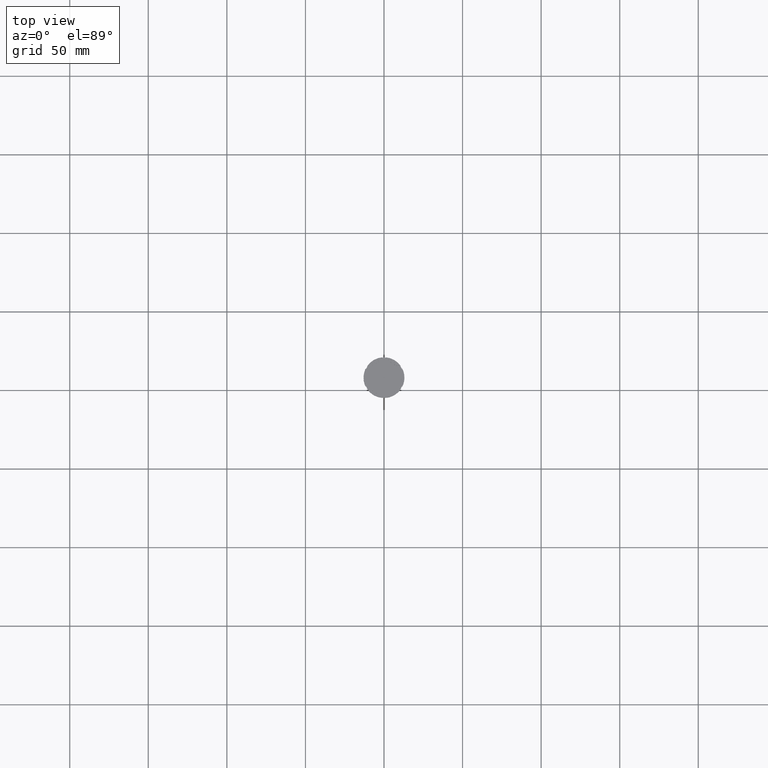
[diagram: clean part render]
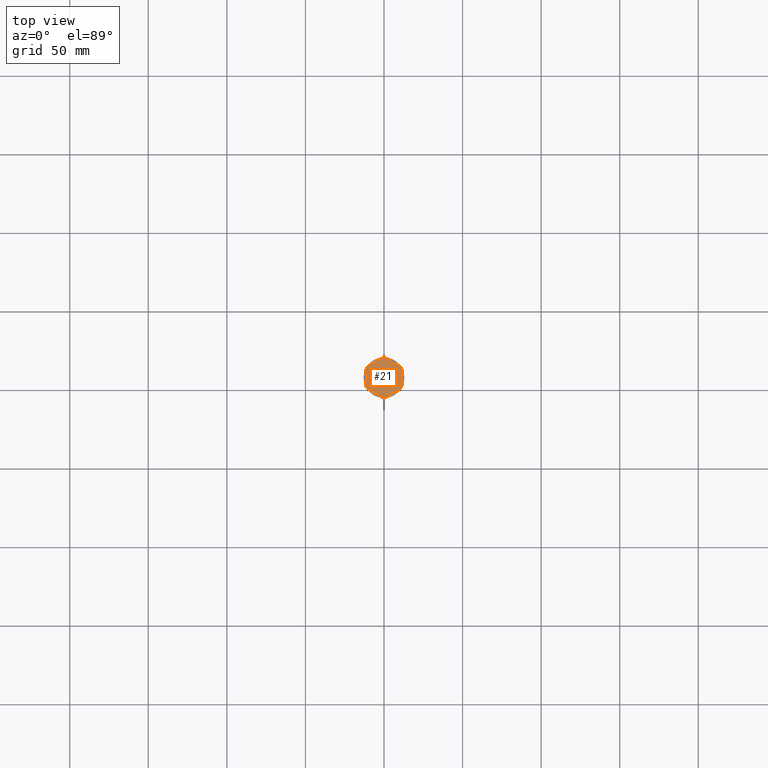
[diagram: same view with one face highlighted and labeled with its STEP entity id]
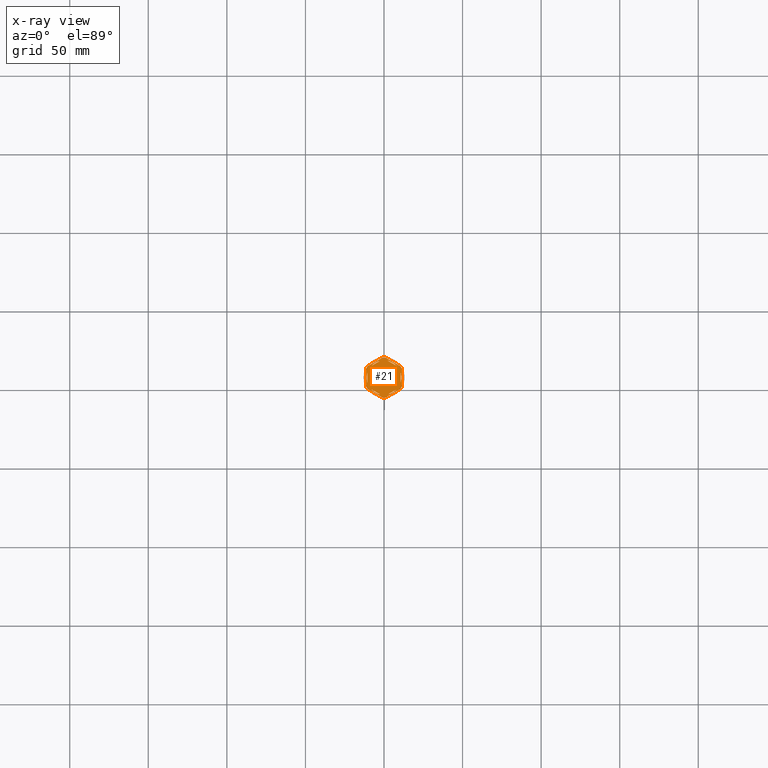
[diagram: x-ray of the same camera — body ghosted, the highlighted face saturated]
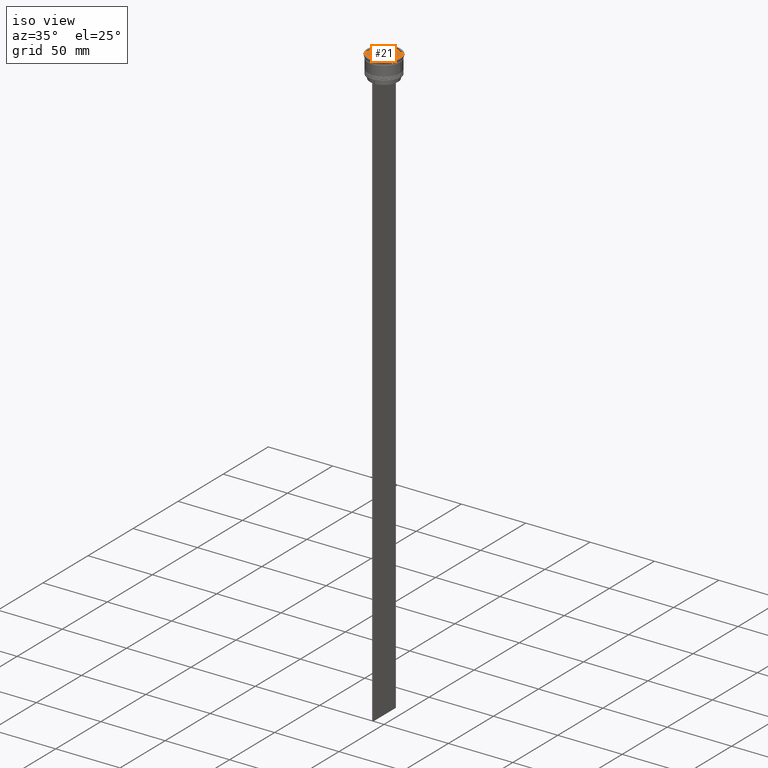
[diagram: same view with one face highlighted and labeled with its STEP entity id]
A machine part, top view. The second image highlights one B-rep face of the part: STEP entity #21.
The next image is the same camera in x-ray: the body ghosted, the highlighted face saturated — about 0% of this face is hidden behind the body in this view.
A second angle (iso view) of the same face is appended — the face is thin or edge-on in the first view.
In plain terms, the highlighted planar face has unit normal (0, 0, 1).
Its self-contained STEP definition (entity closure, byte-faithful):
#11 = VECTOR ( 'NONE', #1618, 1000.000000000000000 ) ;
#12 = VERTEX_POINT ( 'NONE', #18 ) ;
#14 = DIRECTION ( 'NONE',  ( 1.000000000000000000, 0.000000000000000000, 0.000000000000000000 ) ) ;
#18 = CARTESIAN_POINT ( 'NONE',  ( 10.49999999999999467, -3.278719262151014835, -1.000000000000000888 ) ) ;
#21 = ADVANCED_FACE ( 'NONE', ( #2451, #913, #2281, #1222, #2122, #537, #1427 ), #1905, .T. ) ;
#28 = VERTEX_POINT ( 'NONE', #333 ) ;
#47 = LINE ( 'NONE', #2718, #157 ) ;
#50 = ORIENTED_EDGE ( 'NONE', *, *, #2399, .F. ) ;
#60 = CARTESIAN_POINT ( 'NONE',  ( 0.000000000000000000, 0.000000000000000000, -1.000000000000000000 ) ) ;
#64 = VERTEX_POINT ( 'NONE', #307 ) ;
#67 = CARTESIAN_POINT ( 'NONE',  ( -2.410545827099876082, -10.73262637081210435, -1.000000000000000888 ) ) ;
#68 = ORIENTED_EDGE ( 'NONE', *, *, #2045, .F. ) ;
#93 = CIRCLE ( 'NONE', #426, 11.00000000000000000 ) ;
#101 = DIRECTION ( 'NONE',  ( 1.000000000000000000, 0.000000000000000000, -0.000000000000000000 ) ) ;
#136 = DIRECTION ( 'NONE',  ( 1.000000000000000000, 0.000000000000000000, 0.000000000000000000 ) ) ;
#153 = VECTOR ( 'NONE', #985, 1000.000000000000000 ) ;
#157 = VECTOR ( 'NONE', #1422, 1000.000000000000114 ) ;
#175 = CARTESIAN_POINT ( 'NONE',  ( -10.49999999999999822, -3.278719262151000624, -1.000000000000000888 ) ) ;
#178 = EDGE_LOOP ( 'NONE', ( #366, #1282, #2001 ) ) ;
#209 = CIRCLE ( 'NONE', #1505, 12.69999999999999929 ) ;
#212 = EDGE_LOOP ( 'NONE', ( #68, #2517 ) ) ;
#239 = ORIENTED_EDGE ( 'NONE', *, *, #547, .T. ) ;
#249 = AXIS2_PLACEMENT_3D ( 'NONE', #1590, #2040, #1800 ) ;
#257 = VERTEX_POINT ( 'NONE', #866 ) ;
#263 = VERTEX_POINT ( 'NONE', #2815 ) ;
#288 = DIRECTION ( 'NONE',  ( 0.8660254037844385966, 0.4999999999999999445, 0.000000000000000000 ) ) ;
#307 = CARTESIAN_POINT ( 'NONE',  ( -10.41690475583121689, 7.264853426459546348, -1.000000000000000000 ) ) ;
#318 = VERTEX_POINT ( 'NONE', #890 ) ;
#323 = CARTESIAN_POINT ( 'NONE',  ( 0.000000000000000000, 0.000000000000000000, -1.000000000000000000 ) ) ;
#325 = CARTESIAN_POINT ( 'NONE',  ( 0.000000000000000000, 0.000000000000000000, -1.000000000000000000 ) ) ;
#331 = EDGE_CURVE ( 'NONE', #28, #2750, #2264, .T. ) ;
#333 = CARTESIAN_POINT ( 'NONE',  ( -10.41690475583121334, -7.264853426459548125, -1.000000000000000000 ) ) ;
#348 = LINE ( 'NONE', #2351, #1088 ) ;
#366 = ORIENTED_EDGE ( 'NONE', *, *, #2581, .F. ) ;
#385 = CARTESIAN_POINT ( 'NONE',  ( -2.602085213965210642E-15, -12.12435565298214080, -1.000000000000000888 ) ) ;
#410 = EDGE_CURVE ( 'NONE', #552, #445, #569, .T. ) ;
#426 = AXIS2_PLACEMENT_3D ( 'NONE', #785, #1671, #758 ) ;
#436 = VECTOR ( 'NONE', #2652, 1000.000000000000227 ) ;
#445 = VERTEX_POINT ( 'NONE', #2487 ) ;
#453 = EDGE_CURVE ( 'NONE', #2457, #12, #2338, .T. ) ;
#486 = LINE ( 'NONE', #1614, #2006 ) ;
#488 = VERTEX_POINT ( 'NONE', #1643 ) ;
#489 = LINE ( 'NONE', #2017, #11 ) ;
#537 = FACE_BOUND ( 'NONE', #1314, .T. ) ;
#547 = EDGE_CURVE ( 'NONE', #598, #445, #1392, .T. ) ;
#552 = VERTEX_POINT ( 'NONE', #767 ) ;
#569 = CIRCLE ( 'NONE', #2755, 12.69999999999999929 ) ;
#571 = ORIENTED_EDGE ( 'NONE', *, *, #331, .T. ) ;
#588 = VERTEX_POINT ( 'NONE', #1730 ) ;
#598 = VERTEX_POINT ( 'NONE', #1715 ) ;
#601 = EDGE_CURVE ( 'NONE', #1632, #950, #1501, .T. ) ;
#617 = ORIENTED_EDGE ( 'NONE', *, *, #2255, .F. ) ;
#619 = AXIS2_PLACEMENT_3D ( 'NONE', #2637, #1290, #1304 ) ;
#648 = DIRECTION ( 'NONE',  ( 0.8660254037844385966, 0.5000000000000001110, -0.000000000000000000 ) ) ;
#653 = ORIENTED_EDGE ( 'NONE', *, *, #2230, .F. ) ;
#673 = AXIS2_PLACEMENT_3D ( 'NONE', #2061, #1432, #1377 ) ;
#689 = VERTEX_POINT ( 'NONE', #861 ) ;
#701 = CARTESIAN_POINT ( 'NONE',  ( 10.49999999999999467, 3.278719262151012170, -1.000000000000000888 ) ) ;
#707 = AXIS2_PLACEMENT_3D ( 'NONE', #2215, #1988, #2395 ) ;
#729 = EDGE_LOOP ( 'NONE', ( #2020, #1564, #1249, #50, #1568, #1588, #2256, #1672, #571, #1943, #239, #797 ) ) ;
#732 = DIRECTION ( 'NONE',  ( 1.000000000000000000, 0.000000000000000000, 0.000000000000000000 ) ) ;
#754 = AXIS2_PLACEMENT_3D ( 'NONE', #325, #2774, #2316 ) ;
#758 = DIRECTION ( 'NONE',  ( 1.000000000000000000, 0.000000000000000000, 0.000000000000000000 ) ) ;
#759 = CIRCLE ( 'NONE', #1225, 11.00000000000000000 ) ;
#767 = CARTESIAN_POINT ( 'NONE',  ( 11.49999999999999822, -5.388877434122996135, -1.000000000000000000 ) ) ;
#785 = CARTESIAN_POINT ( 'NONE',  ( 0.000000000000000000, 0.000000000000000000, -1.000000000000000000 ) ) ;
#797 = ORIENTED_EDGE ( 'NONE', *, *, #410, .F. ) ;
#850 = CIRCLE ( 'NONE', #2473, 12.69999999999999929 ) ;
#861 = CARTESIAN_POINT ( 'NONE',  ( -11.00000000000000000, 0.000000000000000000, -1.000000000000000000 ) ) ;
#866 = CARTESIAN_POINT ( 'NONE',  ( 1.083095244168781557, 12.65373086058254160, -1.000000000000000000 ) ) ;
#876 = CARTESIAN_POINT ( 'NONE',  ( 11.49999999999999822, 5.388877434122992582, -1.000000000000000000 ) ) ;
#890 = CARTESIAN_POINT ( 'NONE',  ( -11.50000000000000000, -5.388877434122992582, -1.000000000000000000 ) ) ;
#909 = EDGE_CURVE ( 'NONE', #598, #2750, #209, .T. ) ;
#913 = FACE_BOUND ( 'NONE', #2651, .T. ) ;
#917 = CARTESIAN_POINT ( 'NONE',  ( -1.083095244168779780, -12.65373086058253982, -1.000000000000000000 ) ) ;
#938 = EDGE_CURVE ( 'NONE', #2644, #1457, #2288, .T. ) ;
#950 = VERTEX_POINT ( 'NONE', #1870 ) ;
#970 = CARTESIAN_POINT ( 'NONE',  ( 10.49999999999999289, -6.062177826491073063, -1.000000000000000888 ) ) ;
#981 = CARTESIAN_POINT ( 'NONE',  ( 0.000000000000000000, 0.000000000000000000, -1.000000000000000000 ) ) ;
#985 = DIRECTION ( 'NONE',  ( -1.430775808321104180E-16, -1.000000000000000000, 0.000000000000000000 ) ) ;
#989 = CIRCLE ( 'NONE', #754, 12.69999999999999929 ) ;
#995 = EDGE_CURVE ( 'NONE', #2640, #64, #989, .T. ) ;
#1028 = DIRECTION ( 'NONE',  ( -0.8660254037844384856, 0.5000000000000002220, 0.000000000000000000 ) ) ;
#1034 = VECTOR ( 'NONE', #288, 1000.000000000000114 ) ;
#1040 = EDGE_LOOP ( 'NONE', ( #2221, #2616 ) ) ;
#1085 = VECTOR ( 'NONE', #648, 1000.000000000000000 ) ;
#1088 = VECTOR ( 'NONE', #1028, 1000.000000000000000 ) ;
#1112 = DIRECTION ( 'NONE',  ( 0.8660254037844387076, -0.4999999999999999445, 0.000000000000000000 ) ) ;
#1154 = DIRECTION ( 'NONE',  ( -0.000000000000000000, -0.000000000000000000, -1.000000000000000000 ) ) ;
#1157 = DIRECTION ( 'NONE',  ( -0.000000000000000000, -0.000000000000000000, -1.000000000000000000 ) ) ;
#1171 = DIRECTION ( 'NONE',  ( 1.000000000000000000, 0.000000000000000000, 0.000000000000000000 ) ) ;
#1222 = FACE_BOUND ( 'NONE', #212, .T. ) ;
#1225 = AXIS2_PLACEMENT_3D ( 'NONE', #60, #1840, #732 ) ;
#1249 = ORIENTED_EDGE ( 'NONE', *, *, #2266, .T. ) ;
#1272 = DIRECTION ( 'NONE',  ( -0.8660254037844387076, -0.4999999999999999445, 0.000000000000000000 ) ) ;
#1278 = EDGE_CURVE ( 'NONE', #263, #2424, #759, .T. ) ;
#1282 = ORIENTED_EDGE ( 'NONE', *, *, #1490, .F. ) ;
#1290 = DIRECTION ( 'NONE',  ( 0.000000000000000000, 0.000000000000000000, 1.000000000000000000 ) ) ;
#1301 = DIRECTION ( 'NONE',  ( -0.8660254037844388186, 0.4999999999999997224, 0.000000000000000000 ) ) ;
#1304 = DIRECTION ( 'NONE',  ( 1.000000000000000000, 0.000000000000000000, 0.000000000000000000 ) ) ;
#1314 = EDGE_LOOP ( 'NONE', ( #2501, #617 ) ) ;
#1340 = DIRECTION ( 'NONE',  ( -0.000000000000000000, -0.000000000000000000, -1.000000000000000000 ) ) ;
#1344 = DIRECTION ( 'NONE',  ( 1.000000000000000000, 1.243449787580175325E-14, 0.000000000000000000 ) ) ;
#1366 = CARTESIAN_POINT ( 'NONE',  ( 8.089454172900138573, 7.453907108661105063, -1.000000000000000888 ) ) ;
#1377 = DIRECTION ( 'NONE',  ( 1.000000000000000000, 0.000000000000000000, 0.000000000000000000 ) ) ;
#1388 = EDGE_CURVE ( 'NONE', #689, #2601, #93, .T. ) ;
#1392 = LINE ( 'NONE', #2277, #1034 ) ;
#1393 = CARTESIAN_POINT ( 'NONE',  ( 10.41690475583121156, 7.264853426459550789, -1.000000000000000000 ) ) ;
#1398 = VECTOR ( 'NONE', #2406, 1000.000000000000000 ) ;
#1422 = DIRECTION ( 'NONE',  ( -0.8660254037844385966, -0.5000000000000001110, 0.000000000000000000 ) ) ;
#1427 = FACE_OUTER_BOUND ( 'NONE', #729, .T. ) ;
#1432 = DIRECTION ( 'NONE',  ( 0.000000000000000000, 0.000000000000000000, 1.000000000000000000 ) ) ;
#1438 = CARTESIAN_POINT ( 'NONE',  ( 0.000000000000000000, 0.000000000000000000, -1.000000000000000000 ) ) ;
#1449 = VECTOR ( 'NONE', #1301, 1000.000000000000000 ) ;
#1457 = VERTEX_POINT ( 'NONE', #2170 ) ;
#1462 = DIRECTION ( 'NONE',  ( 1.000000000000000000, 7.105427357601001859E-15, 0.000000000000000000 ) ) ;
#1464 = CARTESIAN_POINT ( 'NONE',  ( 0.000000000000000000, 0.000000000000000000, -1.000000000000000000 ) ) ;
#1476 = DIRECTION ( 'NONE',  ( 0.000000000000000000, 0.000000000000000000, 1.000000000000000000 ) ) ;
#1490 = EDGE_CURVE ( 'NONE', #2601, #488, #1736, .T. ) ;
#1501 = CIRCLE ( 'NONE', #619, 11.00000000000000000 ) ;
#1505 = AXIS2_PLACEMENT_3D ( 'NONE', #981, #1157, #1171 ) ;
#1509 = CARTESIAN_POINT ( 'NONE',  ( -1.083095244168783333, 12.65373086058254160, -1.000000000000000000 ) ) ;
#1524 = CARTESIAN_POINT ( 'NONE',  ( 11.50000000000000000, 6.639528095680698350, -1.000000000000000000 ) ) ;
#1564 = ORIENTED_EDGE ( 'NONE', *, *, #2356, .F. ) ;
#1568 = ORIENTED_EDGE ( 'NONE', *, *, #2835, .T. ) ;
#1588 = ORIENTED_EDGE ( 'NONE', *, *, #995, .F. ) ;
#1590 = CARTESIAN_POINT ( 'NONE',  ( 0.000000000000000000, 0.000000000000000000, -1.000000000000000000 ) ) ;
#1608 = EDGE_CURVE ( 'NONE', #1457, #2644, #486, .T. ) ;
#1614 = CARTESIAN_POINT ( 'NONE',  ( 10.49999999999999467, 6.062177826491072175, -1.000000000000000888 ) ) ;
#1616 = VERTEX_POINT ( 'NONE', #1393 ) ;
#1618 = DIRECTION ( 'NONE',  ( 1.306360520641008153E-16, 1.000000000000000000, 0.000000000000000000 ) ) ;
#1632 = VERTEX_POINT ( 'NONE', #2027 ) ;
#1643 = CARTESIAN_POINT ( 'NONE',  ( -10.49999999999999822, 3.278719262151000624, -1.000000000000000888 ) ) ;
#1662 = CARTESIAN_POINT ( 'NONE',  ( -11.50000000000000000, 6.639528095680691244, -1.000000000000000000 ) ) ;
#1671 = DIRECTION ( 'NONE',  ( 0.000000000000000000, 0.000000000000000000, 1.000000000000000000 ) ) ;
#1672 = ORIENTED_EDGE ( 'NONE', *, *, #2188, .F. ) ;
#1697 = LINE ( 'NONE', #1662, #2279 ) ;
#1715 = CARTESIAN_POINT ( 'NONE',  ( 1.083095244168774673, -12.65373086058253982, -1.000000000000000000 ) ) ;
#1730 = CARTESIAN_POINT ( 'NONE',  ( -8.089454172900133244, -7.453907108661111280, -1.000000000000000888 ) ) ;
#1736 = LINE ( 'NONE', #2830, #1398 ) ;
#1737 = AXIS2_PLACEMENT_3D ( 'NONE', #2554, #2575, #2591 ) ;
#1785 = LINE ( 'NONE', #2864, #1085 ) ;
#1800 = DIRECTION ( 'NONE',  ( 1.000000000000000000, -1.776356839400250465E-14, 0.000000000000000000 ) ) ;
#1840 = DIRECTION ( 'NONE',  ( 0.000000000000000000, 0.000000000000000000, 1.000000000000000000 ) ) ;
#1860 = ORIENTED_EDGE ( 'NONE', *, *, #453, .F. ) ;
#1870 = CARTESIAN_POINT ( 'NONE',  ( 8.089454172900135021, -7.453907108661109504, -1.000000000000000888 ) ) ;
#1905 = PLANE ( 'NONE',  #2850 ) ;
#1915 = VECTOR ( 'NONE', #1272, 999.9999999999998863 ) ;
#1943 = ORIENTED_EDGE ( 'NONE', *, *, #909, .F. ) ;
#1962 = EDGE_CURVE ( 'NONE', #2640, #318, #1697, .T. ) ;
#1988 = DIRECTION ( 'NONE',  ( 0.000000000000000000, 0.000000000000000000, 1.000000000000000000 ) ) ;
#2001 = ORIENTED_EDGE ( 'NONE', *, *, #1388, .F. ) ;
#2006 = VECTOR ( 'NONE', #1112, 999.9999999999998863 ) ;
#2009 = CARTESIAN_POINT ( 'NONE',  ( -11.50000000000000000, -6.639528095680696573, -1.000000000000000000 ) ) ;
#2012 = CIRCLE ( 'NONE', #707, 11.00000000000000000 ) ;
#2017 = CARTESIAN_POINT ( 'NONE',  ( 11.49999999999999822, -6.639528095680694797, -1.000000000000000000 ) ) ;
#2020 = ORIENTED_EDGE ( 'NONE', *, *, #2420, .T. ) ;
#2027 = CARTESIAN_POINT ( 'NONE',  ( 2.410545827099865868, -10.73262637081210791, -1.000000000000000888 ) ) ;
#2031 = CARTESIAN_POINT ( 'NONE',  ( -8.089454172900135021, 7.453907108661106840, -1.000000000000000888 ) ) ;
#2040 = DIRECTION ( 'NONE',  ( -0.000000000000000000, -0.000000000000000000, -1.000000000000000000 ) ) ;
#2045 = EDGE_CURVE ( 'NONE', #588, #2870, #2565, .T. ) ;
#2061 = CARTESIAN_POINT ( 'NONE',  ( 0.000000000000000000, 0.000000000000000000, -1.000000000000000000 ) ) ;
#2072 = DIRECTION ( 'NONE',  ( 0.000000000000000000, -1.000000000000000000, 0.000000000000000000 ) ) ;
#2102 = CIRCLE ( 'NONE', #2382, 12.69999999999999929 ) ;
#2122 = FACE_BOUND ( 'NONE', #178, .T. ) ;
#2170 = CARTESIAN_POINT ( 'NONE',  ( 2.410545827099861871, 10.73262637081210791, -1.000000000000000888 ) ) ;
#2173 = LINE ( 'NONE', #1524, #1449 ) ;
#2188 = EDGE_CURVE ( 'NONE', #28, #318, #850, .T. ) ;
#2215 = CARTESIAN_POINT ( 'NONE',  ( 0.000000000000000000, 0.000000000000000000, -1.000000000000000000 ) ) ;
#2221 = ORIENTED_EDGE ( 'NONE', *, *, #938, .F. ) ;
#2226 = EDGE_LOOP ( 'NONE', ( #2276, #2371 ) ) ;
#2230 = EDGE_CURVE ( 'NONE', #12, #2457, #2012, .T. ) ;
#2255 = EDGE_CURVE ( 'NONE', #2424, #263, #1785, .T. ) ;
#2256 = ORIENTED_EDGE ( 'NONE', *, *, #1962, .T. ) ;
#2264 = LINE ( 'NONE', #2009, #436 ) ;
#2266 = EDGE_CURVE ( 'NONE', #1616, #257, #2173, .T. ) ;
#2276 = ORIENTED_EDGE ( 'NONE', *, *, #601, .F. ) ;
#2277 = CARTESIAN_POINT ( 'NONE',  ( 5.612359739892467248E-18, -13.27905619136138959, -1.000000000000000000 ) ) ;
#2279 = VECTOR ( 'NONE', #2072, 1000.000000000000000 ) ;
#2281 = FACE_BOUND ( 'NONE', #2226, .T. ) ;
#2288 = CIRCLE ( 'NONE', #673, 11.00000000000000000 ) ;
#2316 = DIRECTION ( 'NONE',  ( 1.000000000000000000, 0.000000000000000000, 0.000000000000000000 ) ) ;
#2321 = EDGE_CURVE ( 'NONE', #950, #1632, #2374, .T. ) ;
#2323 = VERTEX_POINT ( 'NONE', #1509 ) ;
#2338 = LINE ( 'NONE', #970, #153 ) ;
#2351 = CARTESIAN_POINT ( 'NONE',  ( -10.49999999999999822, -6.062177826491068622, -1.000000000000000888 ) ) ;
#2356 = EDGE_CURVE ( 'NONE', #1616, #2673, #2476, .T. ) ;
#2371 = ORIENTED_EDGE ( 'NONE', *, *, #2321, .F. ) ;
#2374 = LINE ( 'NONE', #385, #1915 ) ;
#2380 = AXIS2_PLACEMENT_3D ( 'NONE', #1464, #1476, #136 ) ;
#2382 = AXIS2_PLACEMENT_3D ( 'NONE', #2478, #1154, #1344 ) ;
#2395 = DIRECTION ( 'NONE',  ( 1.000000000000000000, 0.000000000000000000, 0.000000000000000000 ) ) ;
#2399 = EDGE_CURVE ( 'NONE', #2323, #257, #2102, .T. ) ;
#2406 = DIRECTION ( 'NONE',  ( 0.000000000000000000, 1.000000000000000000, 0.000000000000000000 ) ) ;
#2420 = EDGE_CURVE ( 'NONE', #552, #2673, #489, .T. ) ;
#2424 = VERTEX_POINT ( 'NONE', #2031 ) ;
#2446 = CARTESIAN_POINT ( 'NONE',  ( -11.50000000000000000, 5.388877434122992582, -1.000000000000000000 ) ) ;
#2451 = FACE_BOUND ( 'NONE', #1040, .T. ) ;
#2457 = VERTEX_POINT ( 'NONE', #701 ) ;
#2473 = AXIS2_PLACEMENT_3D ( 'NONE', #323, #2563, #1462 ) ;
#2476 = CIRCLE ( 'NONE', #249, 12.69999999999999929 ) ;
#2478 = CARTESIAN_POINT ( 'NONE',  ( 0.000000000000000000, 0.000000000000000000, -1.000000000000000000 ) ) ;
#2487 = CARTESIAN_POINT ( 'NONE',  ( 10.41690475583121867, -7.264853426459537467, -1.000000000000000000 ) ) ;
#2501 = ORIENTED_EDGE ( 'NONE', *, *, #1278, .F. ) ;
#2517 = ORIENTED_EDGE ( 'NONE', *, *, #2538, .F. ) ;
#2538 = EDGE_CURVE ( 'NONE', #2870, #588, #348, .T. ) ;
#2554 = CARTESIAN_POINT ( 'NONE',  ( 0.000000000000000000, 0.000000000000000000, -1.000000000000000000 ) ) ;
#2563 = DIRECTION ( 'NONE',  ( -0.000000000000000000, -0.000000000000000000, -1.000000000000000000 ) ) ;
#2565 = CIRCLE ( 'NONE', #2380, 11.00000000000000000 ) ;
#2575 = DIRECTION ( 'NONE',  ( 0.000000000000000000, 0.000000000000000000, 1.000000000000000000 ) ) ;
#2581 = EDGE_CURVE ( 'NONE', #488, #689, #2709, .T. ) ;
#2591 = DIRECTION ( 'NONE',  ( 1.000000000000000000, 0.000000000000000000, 0.000000000000000000 ) ) ;
#2601 = VERTEX_POINT ( 'NONE', #175 ) ;
#2616 = ORIENTED_EDGE ( 'NONE', *, *, #1608, .F. ) ;
#2637 = CARTESIAN_POINT ( 'NONE',  ( 0.000000000000000000, 0.000000000000000000, -1.000000000000000000 ) ) ;
#2640 = VERTEX_POINT ( 'NONE', #2446 ) ;
#2644 = VERTEX_POINT ( 'NONE', #1366 ) ;
#2651 = EDGE_LOOP ( 'NONE', ( #653, #1860 ) ) ;
#2652 = DIRECTION ( 'NONE',  ( 0.8660254037844387076, -0.4999999999999997780, 0.000000000000000000 ) ) ;
#2668 = CARTESIAN_POINT ( 'NONE',  ( 0.000000000000000000, 0.000000000000000000, -1.000000000000000000 ) ) ;
#2673 = VERTEX_POINT ( 'NONE', #876 ) ;
#2709 = CIRCLE ( 'NONE', #1737, 11.00000000000000000 ) ;
#2718 = CARTESIAN_POINT ( 'NONE',  ( 0.000000000000000000, 13.27905619136138959, -1.000000000000000000 ) ) ;
#2750 = VERTEX_POINT ( 'NONE', #917 ) ;
#2755 = AXIS2_PLACEMENT_3D ( 'NONE', #2668, #1340, #14 ) ;
#2768 = DIRECTION ( 'NONE',  ( 0.000000000000000000, 0.000000000000000000, 1.000000000000000000 ) ) ;
#2774 = DIRECTION ( 'NONE',  ( -0.000000000000000000, -0.000000000000000000, -1.000000000000000000 ) ) ;
#2815 = CARTESIAN_POINT ( 'NONE',  ( -2.410545827099867200, 10.73262637081210613, -1.000000000000000888 ) ) ;
#2830 = CARTESIAN_POINT ( 'NONE',  ( -10.49999999999999822, 6.062177826491068622, -1.000000000000000888 ) ) ;
#2835 = EDGE_CURVE ( 'NONE', #2323, #64, #47, .T. ) ;
#2850 = AXIS2_PLACEMENT_3D ( 'NONE', #1438, #2768, #101 ) ;
#2864 = CARTESIAN_POINT ( 'NONE',  ( -1.734723475976807094E-15, 12.12435565298214080, -1.000000000000000888 ) ) ;
#2870 = VERTEX_POINT ( 'NONE', #67 ) ;